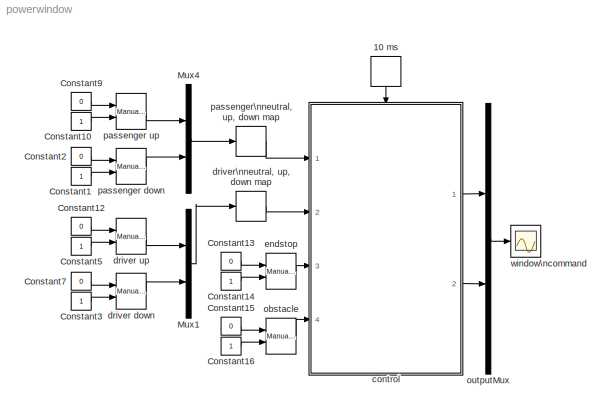
MODEL powerwindow
KIND model
BLOCK [DiscretePulseGenerator] 10 ms
  Period = 1e-2
  Ports = [0, 1]
  PulseType = Time based
  PulseWidth = 50
  SampleTime = 1e-3
BLOCK [Constant] Constant1
BLOCK [Constant] Constant10
BLOCK [Constant] Constant12
  Value = 0
BLOCK [Constant] Constant13
  Value = 0
BLOCK [Constant] Constant14
BLOCK [Constant] Constant15
  Value = 0
BLOCK [Constant] Constant16
BLOCK [Constant] Constant2
  Value = 0
BLOCK [Constant] Constant3
BLOCK [Constant] Constant5
BLOCK [Constant] Constant7
  Value = 0
BLOCK [Constant] Constant9
  Value = 0
BLOCK [Mux] Mux1
  DisplayOption = bar
  Inputs = 2
  Ports = [2, 1]
BLOCK [Mux] Mux4
  DisplayOption = bar
  Inputs = 2
  Ports = [2, 1]
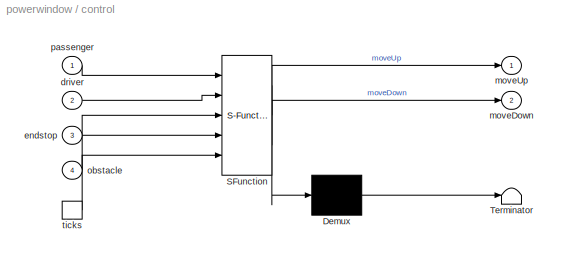
BLOCK [SubSystem] control
  MaskDescription = Stateflow diagram
  MaskDisplay = plot(sf('Private','sfblk','xIcon'),sf('Private','sfblk','yIcon'));text(0.5,0,sf('Private', 'sfblk', 'tIcon'),'HorizontalAl','Center','VerticalAl','Bottom');
  MaskIconFrame = off
  MaskIconOpaque = off
  MaskIconRotate = none
  MaskIconUnits = autoscale
  MaskSelfModifiable = on
  MaskType = Stateflow
  MinAlgLoopOccurrences = off
  Ports = [4, 2, 0, 1]
  PropExecContextAcrossSSBoundary = on
  RTWSystemCode = Auto
  TreatAsAtomicUnit = on
BLOCK [Demux] control/ Demux 
  Outputs = 1
  Ports = [1, 1]
BLOCK [S-Function] control/ SFunction 
  FunctionName = sf_sfun
  PortCounts = [5 3]
  Ports = [5, 3]
  Tag = Stateflow S-Function powerwindow 1
BLOCK [Terminator] control/ Terminator 
BLOCK [Inport] control/driver
  IconDisplay = Port number
  LatchInput = off
  Port = 2
BLOCK [Inport] control/endstop
  IconDisplay = Port number
  LatchInput = off
  Port = 3
BLOCK [Outport] control/moveDown
  IconDisplay = Port number
  Port = 2
BLOCK [Outport] control/moveUp
  IconDisplay = Port number
BLOCK [Inport] control/obstacle
  IconDisplay = Port number
  LatchInput = off
  Port = 4
BLOCK [Inport] control/passenger
  IconDisplay = Port number
  LatchInput = off
  Port = 1
BLOCK [TriggerPort] control/ticks
  Ports = [0, 1]
  ShowOutputPort = on
BLOCK [Reference] driver down  REF=simulink/Signal\nRouting/Manual Switch
  Ports = [2, 1]
  ShowPortLabels = on
  SourceBlock = simulink/Signal\nRouting/Manual Switch
  SourceType = Manual Switch
  action = 0
  sw = 1
BLOCK [Reference] driver up  REF=simulink/Signal\nRouting/Manual Switch
  Ports = [2, 1]
  ShowPortLabels = on
  SourceBlock = simulink/Signal\nRouting/Manual Switch
  SourceType = Manual Switch
  action = 0
  sw = 1
BLOCK [CombinatorialLogic] driver\nneutral, up, down map
  TruthTable = [1 0 0;0 0 1;0 1 0;1 0 0]
BLOCK [Reference] endstop  REF=simulink/Signal\nRouting/Manual Switch
  Ports = [2, 1]
  ShowPortLabels = on
  SourceBlock = simulink/Signal\nRouting/Manual Switch
  SourceType = Manual Switch
  action = 0
  sw = 1
BLOCK [Reference] obstacle  REF=simulink/Signal\nRouting/Manual Switch
  Ports = [2, 1]
  ShowPortLabels = on
  SourceBlock = simulink/Signal\nRouting/Manual Switch
  SourceType = Manual Switch
  action = 0
  sw = 1
BLOCK [Mux] outputMux
  DisplayOption = bar
  Inputs = 2
  Ports = [2, 1]
BLOCK [Reference] passenger down  REF=simulink/Signal\nRouting/Manual Switch
  Ports = [2, 1]
  ShowPortLabels = on
  SourceBlock = simulink/Signal\nRouting/Manual Switch
  SourceType = Manual Switch
  action = 0
  sw = 1
BLOCK [Reference] passenger up  REF=simulink/Signal\nRouting/Manual Switch
  Ports = [2, 1]
  ShowPortLabels = on
  SourceBlock = simulink/Signal\nRouting/Manual Switch
  SourceType = Manual Switch
  action = 0
  sw = 1
BLOCK [CombinatorialLogic] passenger\nneutral, up, down map
  TruthTable = [1 0 0;0 0 1;0 1 0;1 0 0]
BLOCK [Scope] window\ncommand
  DataFormat = StructureWithTime
  NumInputPorts = 1
  Ports = [1]
  YMax = 1
  YMin = 0
LINE 10 ms:1 -> control:trigger
LINE Constant10:1 -> passenger up:2
LINE Constant12:1 -> driver up:1
LINE Constant13:1 -> endstop:1
LINE Constant14:1 -> endstop:2
LINE Constant15:1 -> obstacle:1
LINE Constant16:1 -> obstacle:2
LINE Constant1:1 -> passenger down:2
LINE Constant2:1 -> passenger down:1
LINE Constant3:1 -> driver down:2
LINE Constant5:1 -> driver up:2
LINE Constant7:1 -> driver down:1
LINE Constant9:1 -> passenger up:1
LINE Mux1:1 -> driver\nneutral, up, down map:1
LINE Mux4:1 -> passenger\nneutral, up, down map:1
LINE control/ Demux :1 -> control/ Terminator :1
LINE control/ SFunction :1 -> control/ Demux :1
LINE control/ SFunction :2 -> control/moveUp:1
LINE control/ SFunction :3 -> control/moveDown:1
LINE control/driver:1 -> control/ SFunction :2
LINE control/endstop:1 -> control/ SFunction :3
LINE control/obstacle:1 -> control/ SFunction :4
LINE control/passenger:1 -> control/ SFunction :1
LINE control/ticks:1 -> control/ SFunction :5
LINE control:1 -> outputMux:1
LINE control:2 -> outputMux:2
LINE driver down:1 -> Mux1:2
LINE driver up:1 -> Mux1:1
LINE driver\nneutral, up, down map:1 -> control:2
LINE endstop:1 -> control:3
LINE obstacle:1 -> control:4
LINE outputMux:1 -> window\ncommand:1
LINE passenger down:1 -> Mux4:2
LINE passenger up:1 -> Mux4:1
LINE passenger\nneutral, up, down map:1 -> control:1
CHART control states=20 transitions=33
  STATE_LABEL 'passengerneutral\\nentry:\\nmoveUp = 0;\\nmoveDown = 0;'
  STATE_LABEL 'emergencyDown\\nentry:\\nmoveUp = 0;\\nmoveDown = 1;'
  STATE_LABEL 'passengerUp\\nentry: moveUp = 1;\\nexit: moveUp = 0;'
  STATE_LABEL 'passengerDown\\nentry: moveDown = 1;\\nexit: moveDown = 0;'
  STATE_LABEL 'iniPassengerUp'
  STATE_LABEL 'iniPassengerDown'
  STATE_LABEL 'PassengerUp'
  STATE_LABEL 'autoPassengerUp'
  STATE_LABEL 'passengerDown'
  STATE_LABEL 'autoPassengerDown'
  STATE_LABEL 'driverUp\\nentry: moveUp = 1;\\nexit: moveUp = 0;'
  STATE_LABEL 'driverDown\\nentry: moveDown = 1;\\nexit: moveDown = 0;'
  STATE_LABEL 'driverNeutral\\nentry:\\nmoveUp = 0;\\nmoveDown = 0;'
  STATE_LABEL 'iniDriverDown'
  STATE_LABEL 'DriverDown'
  STATE_LABEL 'autoDriverDown'
  STATE_LABEL 'iniDriverUp'
  STATE_LABEL 'DriverUp'
  STATE_LABEL 'autoDriverUp'
  STATE_LABEL 'safe'
